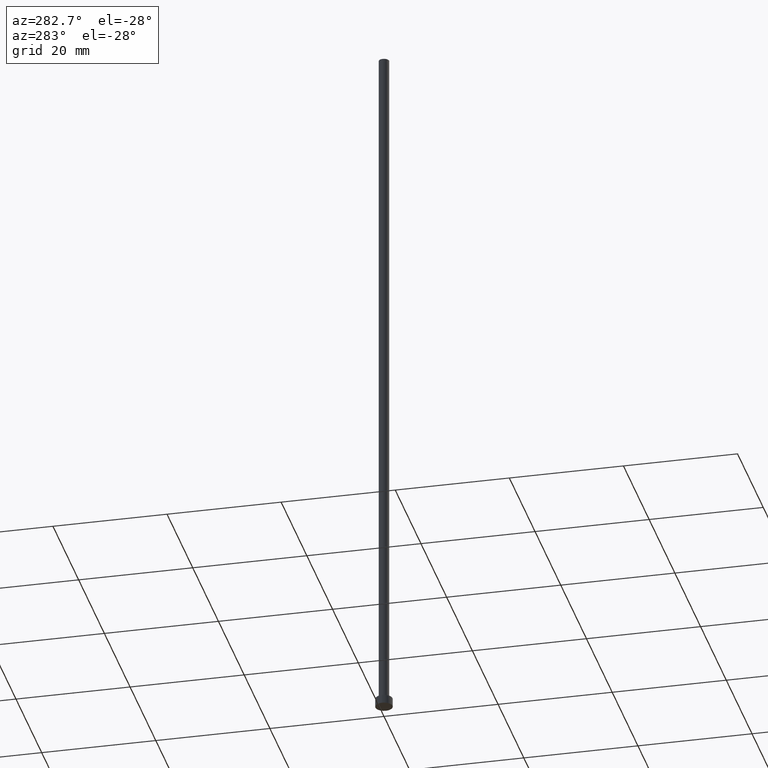
[diagram: clean part render]
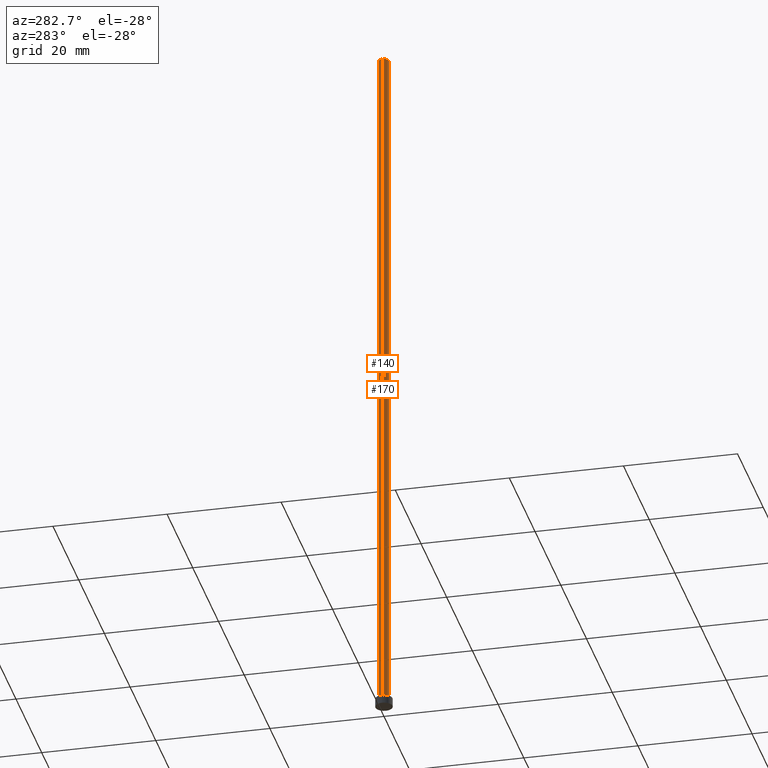
[diagram: same view with one multi-face feature highlighted, each face labeled with its STEP entity id]
A machine part, auxiliary view. The highlighted faces form ONE feature: a constant-radius fillet chain: 2 tangent blend faces with common blend radius 0.9 mm. The faces share edges in the B-rep.
Their STEP definitions:
[1] entity #170 (Cylinder):
#3 = LINE ( 'NONE', #68, #144 ) ;
#14 = ORIENTED_EDGE ( 'NONE', *, *, #188, .F. ) ;
#16 = VERTEX_POINT ( 'NONE', #236 ) ;
#26 = EDGE_LOOP ( 'NONE', ( #213, #157, #253, #14 ) ) ;
#30 = DIRECTION ( 'NONE',  ( 1.000000000000000000, 0.000000000000000000, 0.000000000000000000 ) ) ;
#32 = EDGE_CURVE ( 'NONE', #123, #232, #66, .T. ) ;
#45 = EDGE_CURVE ( 'NONE', #16, #123, #3, .T. ) ;
#46 = CARTESIAN_POINT ( 'NONE',  ( -0.9000000000000000222, 0.000000000000000000, 125.0000000000000000 ) ) ;
#47 = DIRECTION ( 'NONE',  ( 0.000000000000000000, 0.000000000000000000, 1.000000000000000000 ) ) ;
#49 = DIRECTION ( 'NONE',  ( -0.000000000000000000, -0.000000000000000000, -1.000000000000000000 ) ) ;
#61 = VERTEX_POINT ( 'NONE', #46 ) ;
#66 = CIRCLE ( 'NONE', #162, 0.9000000000000000222 ) ;
#68 = CARTESIAN_POINT ( 'NONE',  ( 0.9000000000000000222, 1.102182119232617788E-16, 125.0000000000000000 ) ) ;
#73 = CARTESIAN_POINT ( 'NONE',  ( 0.000000000000000000, 0.000000000000000000, 125.0000000000000000 ) ) ;
#74 = CARTESIAN_POINT ( 'NONE',  ( 0.9000000000000000222, 1.102182119232617788E-16, 1.500000000000000000 ) ) ;
#86 = DIRECTION ( 'NONE',  ( -0.000000000000000000, -0.000000000000000000, -1.000000000000000000 ) ) ;
#90 = CIRCLE ( 'NONE', #249, 0.9000000000000000222 ) ;
#103 = CARTESIAN_POINT ( 'NONE',  ( 0.000000000000000000, 0.000000000000000000, 1.500000000000000000 ) ) ;
#113 = CYLINDRICAL_SURFACE ( 'NONE', #215, 0.9000000000000000222 ) ;
#121 = CARTESIAN_POINT ( 'NONE',  ( -0.9000000000000000222, 0.000000000000000000, 1.500000000000000000 ) ) ;
#122 = DIRECTION ( 'NONE',  ( -0.000000000000000000, -0.000000000000000000, -1.000000000000000000 ) ) ;
#123 = VERTEX_POINT ( 'NONE', #74 ) ;
#129 = EDGE_CURVE ( 'NONE', #16, #61, #90, .T. ) ;
#144 = VECTOR ( 'NONE', #86, 1000.000000000000000 ) ;
#157 = ORIENTED_EDGE ( 'NONE', *, *, #45, .T. ) ;
#162 = AXIS2_PLACEMENT_3D ( 'NONE', #103, #182, #165 ) ;
#165 = DIRECTION ( 'NONE',  ( 1.000000000000000000, 0.000000000000000000, 0.000000000000000000 ) ) ;
#170 = ADVANCED_FACE ( 'NONE', ( #243 ), #113, .T. ) ;
#182 = DIRECTION ( 'NONE',  ( 0.000000000000000000, 0.000000000000000000, 1.000000000000000000 ) ) ;
#188 = EDGE_CURVE ( 'NONE', #61, #232, #209, .T. ) ;
#190 = VECTOR ( 'NONE', #122, 1000.000000000000000 ) ;
#192 = DIRECTION ( 'NONE',  ( -1.000000000000000000, 0.000000000000000000, 0.000000000000000000 ) ) ;
#206 = CARTESIAN_POINT ( 'NONE',  ( 0.000000000000000000, 0.000000000000000000, 125.0000000000000000 ) ) ;
#208 = CARTESIAN_POINT ( 'NONE',  ( -0.9000000000000000222, 0.000000000000000000, 125.0000000000000000 ) ) ;
#209 = LINE ( 'NONE', #208, #190 ) ;
#213 = ORIENTED_EDGE ( 'NONE', *, *, #129, .F. ) ;
#215 = AXIS2_PLACEMENT_3D ( 'NONE', #73, #49, #192 ) ;
#232 = VERTEX_POINT ( 'NONE', #121 ) ;
#236 = CARTESIAN_POINT ( 'NONE',  ( 0.9000000000000000222, 1.102182119232617788E-16, 125.0000000000000000 ) ) ;
#243 = FACE_OUTER_BOUND ( 'NONE', #26, .T. ) ;
#249 = AXIS2_PLACEMENT_3D ( 'NONE', #206, #47, #30 ) ;
#253 = ORIENTED_EDGE ( 'NONE', *, *, #32, .T. ) ;
[2] entity #140 (Cylinder):
#3 = LINE ( 'NONE', #68, #144 ) ;
#4 = FACE_OUTER_BOUND ( 'NONE', #34, .T. ) ;
#6 = AXIS2_PLACEMENT_3D ( 'NONE', #52, #128, #146 ) ;
#12 = ORIENTED_EDGE ( 'NONE', *, *, #188, .T. ) ;
#16 = VERTEX_POINT ( 'NONE', #236 ) ;
#34 = EDGE_LOOP ( 'NONE', ( #96, #186, #12, #101 ) ) ;
#35 = DIRECTION ( 'NONE',  ( 1.000000000000000000, 0.000000000000000000, 0.000000000000000000 ) ) ;
#45 = EDGE_CURVE ( 'NONE', #16, #123, #3, .T. ) ;
#46 = CARTESIAN_POINT ( 'NONE',  ( -0.9000000000000000222, 0.000000000000000000, 125.0000000000000000 ) ) ;
#52 = CARTESIAN_POINT ( 'NONE',  ( 0.000000000000000000, 0.000000000000000000, 125.0000000000000000 ) ) ;
#55 = AXIS2_PLACEMENT_3D ( 'NONE', #64, #142, #242 ) ;
#61 = VERTEX_POINT ( 'NONE', #46 ) ;
#64 = CARTESIAN_POINT ( 'NONE',  ( 0.000000000000000000, 0.000000000000000000, 1.500000000000000000 ) ) ;
#68 = CARTESIAN_POINT ( 'NONE',  ( 0.9000000000000000222, 1.102182119232617788E-16, 125.0000000000000000 ) ) ;
#74 = CARTESIAN_POINT ( 'NONE',  ( 0.9000000000000000222, 1.102182119232617788E-16, 1.500000000000000000 ) ) ;
#76 = EDGE_CURVE ( 'NONE', #232, #123, #220, .T. ) ;
#80 = DIRECTION ( 'NONE',  ( 0.000000000000000000, 0.000000000000000000, 1.000000000000000000 ) ) ;
#86 = DIRECTION ( 'NONE',  ( -0.000000000000000000, -0.000000000000000000, -1.000000000000000000 ) ) ;
#96 = ORIENTED_EDGE ( 'NONE', *, *, #45, .F. ) ;
#101 = ORIENTED_EDGE ( 'NONE', *, *, #76, .T. ) ;
#121 = CARTESIAN_POINT ( 'NONE',  ( -0.9000000000000000222, 0.000000000000000000, 1.500000000000000000 ) ) ;
#122 = DIRECTION ( 'NONE',  ( -0.000000000000000000, -0.000000000000000000, -1.000000000000000000 ) ) ;
#123 = VERTEX_POINT ( 'NONE', #74 ) ;
#128 = DIRECTION ( 'NONE',  ( -0.000000000000000000, -0.000000000000000000, -1.000000000000000000 ) ) ;
#138 = CIRCLE ( 'NONE', #163, 0.9000000000000000222 ) ;
#140 = ADVANCED_FACE ( 'NONE', ( #4 ), #226, .T. ) ;
#142 = DIRECTION ( 'NONE',  ( 0.000000000000000000, 0.000000000000000000, 1.000000000000000000 ) ) ;
#144 = VECTOR ( 'NONE', #86, 1000.000000000000000 ) ;
#146 = DIRECTION ( 'NONE',  ( -1.000000000000000000, 0.000000000000000000, 0.000000000000000000 ) ) ;
#163 = AXIS2_PLACEMENT_3D ( 'NONE', #172, #80, #35 ) ;
#172 = CARTESIAN_POINT ( 'NONE',  ( 0.000000000000000000, 0.000000000000000000, 125.0000000000000000 ) ) ;
#186 = ORIENTED_EDGE ( 'NONE', *, *, #218, .F. ) ;
#188 = EDGE_CURVE ( 'NONE', #61, #232, #209, .T. ) ;
#190 = VECTOR ( 'NONE', #122, 1000.000000000000000 ) ;
#208 = CARTESIAN_POINT ( 'NONE',  ( -0.9000000000000000222, 0.000000000000000000, 125.0000000000000000 ) ) ;
#209 = LINE ( 'NONE', #208, #190 ) ;
#218 = EDGE_CURVE ( 'NONE', #61, #16, #138, .T. ) ;
#220 = CIRCLE ( 'NONE', #55, 0.9000000000000000222 ) ;
#226 = CYLINDRICAL_SURFACE ( 'NONE', #6, 0.9000000000000000222 ) ;
#232 = VERTEX_POINT ( 'NONE', #121 ) ;
#236 = CARTESIAN_POINT ( 'NONE',  ( 0.9000000000000000222, 1.102182119232617788E-16, 125.0000000000000000 ) ) ;
#242 = DIRECTION ( 'NONE',  ( 1.000000000000000000, 0.000000000000000000, 0.000000000000000000 ) ) ;